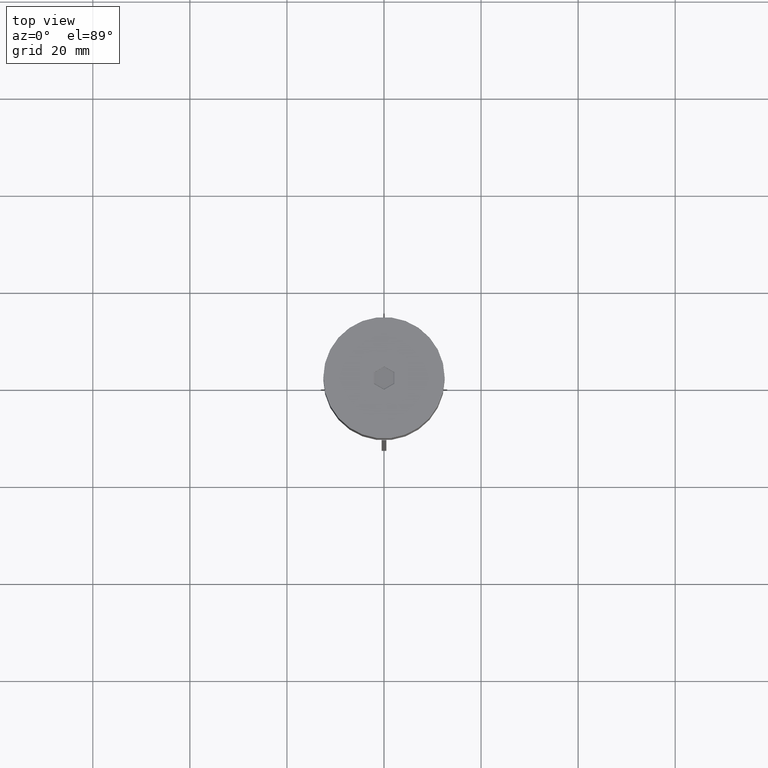
[diagram: clean part render]
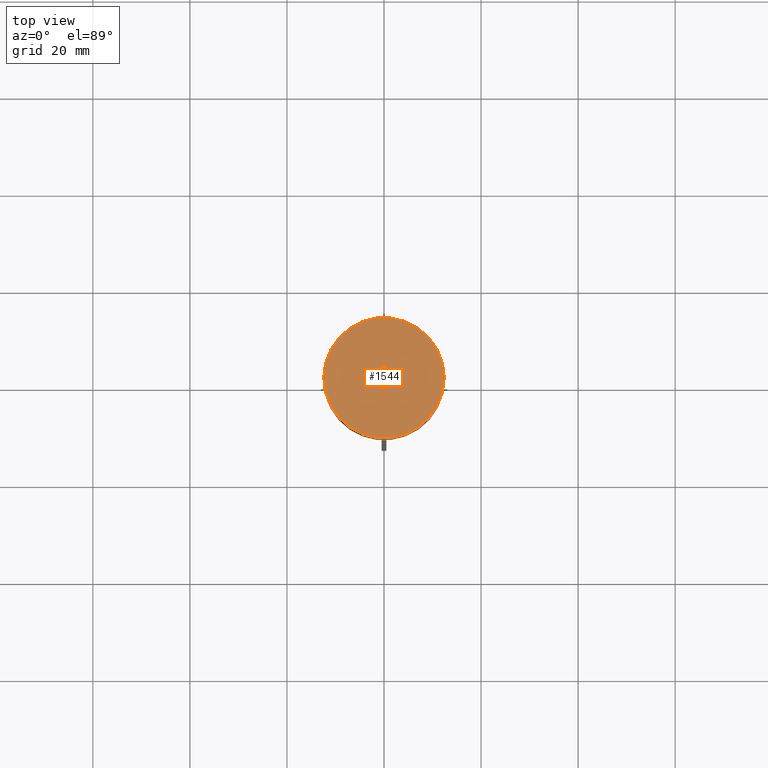
[diagram: same view with one face highlighted and labeled with its STEP entity id]
A machine part, top view. The second image highlights one B-rep face of the part: STEP entity #1544.
In plain terms, the highlighted planar face has unit normal (0, -0, 1).
Its self-contained STEP definition (entity closure, byte-faithful):
#91 = VECTOR ( 'NONE', #531, 1000.000000000000114 ) ;
#118 = LINE ( 'NONE', #141, #1914 ) ;
#136 = VERTEX_POINT ( 'NONE', #647 ) ;
#141 = CARTESIAN_POINT ( 'NONE',  ( 0.05000000000000582451, -2.396003617136956532, 0.000000000000000000 ) ) ;
#156 = CARTESIAN_POINT ( 'NONE',  ( -2.100000000000010747, 1.154700538379251018, 0.000000000000000000 ) ) ;
#272 = ORIENTED_EDGE ( 'NONE', *, *, #945, .T. ) ;
#276 = VERTEX_POINT ( 'NONE', #864 ) ;
#288 = CARTESIAN_POINT ( 'NONE',  ( -2.100000000000010747, -1.212435565298221052, 0.000000000000000000 ) ) ;
#289 = VECTOR ( 'NONE', #2038, 1000.000000000000000 ) ;
#307 = CARTESIAN_POINT ( 'NONE',  ( -0.05000000000000531103, 2.396003617136955199, 0.000000000000000000 ) ) ;
#338 = DIRECTION ( 'NONE',  ( -0.000000000000000000, -0.000000000000000000, 1.000000000000000000 ) ) ;
#420 = DIRECTION ( 'NONE',  ( 0.000000000000000000, -0.000000000000000000, 1.000000000000000000 ) ) ;
#421 = CIRCLE ( 'NONE', #1066, 12.39999999999999858 ) ;
#452 = DIRECTION ( 'NONE',  ( -0.8660254037844385966, -0.5000000000000002220, 0.000000000000000000 ) ) ;
#474 = VERTEX_POINT ( 'NONE', #965 ) ;
#485 = LINE ( 'NONE', #1314, #91 ) ;
#486 = CIRCLE ( 'NONE', #2076, 12.39999999999999858 ) ;
#496 = CARTESIAN_POINT ( 'NONE',  ( -12.39999999999999858, 1.524685264938454448E-15, 0.000000000000000000 ) ) ;
#509 = VERTEX_POINT ( 'NONE', #496 ) ;
#531 = DIRECTION ( 'NONE',  ( -0.8660254037844388186, 0.4999999999999997780, 0.000000000000000000 ) ) ;
#592 = EDGE_LOOP ( 'NONE', ( #1548, #1586 ) ) ;
#622 = DIRECTION ( 'NONE',  ( 0.8660254037844387076, 0.4999999999999998890, 0.000000000000000000 ) ) ;
#647 = CARTESIAN_POINT ( 'NONE',  ( 5.924185309651265879E-16, -2.424871130596440771, 0.000000000000000000 ) ) ;
#688 = EDGE_CURVE ( 'NONE', #1137, #509, #486, .T. ) ;
#718 = DIRECTION ( 'NONE',  ( -0.000000000000000000, -0.000000000000000000, 1.000000000000000000 ) ) ;
#722 = FACE_BOUND ( 'NONE', #889, .T. ) ;
#761 = CARTESIAN_POINT ( 'NONE',  ( 2.100000000000010747, -1.154700538379251684, 0.000000000000000000 ) ) ;
#772 = EDGE_CURVE ( 'NONE', #474, #1336, #2068, .T. ) ;
#805 = VECTOR ( 'NONE', #622, 1000.000000000000000 ) ;
#806 = DIRECTION ( 'NONE',  ( 0.000000000000000000, 1.000000000000000000, 0.000000000000000000 ) ) ;
#864 = CARTESIAN_POINT ( 'NONE',  ( -2.100000000000010747, 1.212435565298219498, 0.000000000000000000 ) ) ;
#879 = EDGE_CURVE ( 'NONE', #1356, #474, #1247, .T. ) ;
#889 = EDGE_LOOP ( 'NONE', ( #1054, #2067, #272, #1159, #1954, #1121 ) ) ;
#911 = PLANE ( 'NONE',  #1849 ) ;
#929 = EDGE_CURVE ( 'NONE', #509, #1137, #421, .T. ) ;
#945 = EDGE_CURVE ( 'NONE', #1693, #276, #1160, .T. ) ;
#965 = CARTESIAN_POINT ( 'NONE',  ( 2.100000000000010747, 1.212435565298220164, 0.000000000000000000 ) ) ;
#1054 = ORIENTED_EDGE ( 'NONE', *, *, #1690, .T. ) ;
#1066 = AXIS2_PLACEMENT_3D ( 'NONE', #1434, #338, #2080 ) ;
#1121 = ORIENTED_EDGE ( 'NONE', *, *, #772, .T. ) ;
#1135 = CARTESIAN_POINT ( 'NONE',  ( 2.100000000000010747, -1.212435565298220386, 0.000000000000000000 ) ) ;
#1137 = VERTEX_POINT ( 'NONE', #1490 ) ;
#1159 = ORIENTED_EDGE ( 'NONE', *, *, #2070, .T. ) ;
#1160 = LINE ( 'NONE', #156, #1910 ) ;
#1212 = FACE_OUTER_BOUND ( 'NONE', #592, .T. ) ;
#1247 = LINE ( 'NONE', #1730, #1638 ) ;
#1314 = CARTESIAN_POINT ( 'NONE',  ( -2.050000000000005596, -1.241303078757705292, 0.000000000000000000 ) ) ;
#1336 = VERTEX_POINT ( 'NONE', #1135 ) ;
#1356 = VERTEX_POINT ( 'NONE', #1655 ) ;
#1359 = DIRECTION ( 'NONE',  ( 1.000000000000000000, 0.000000000000000000, 0.000000000000000000 ) ) ;
#1385 = EDGE_CURVE ( 'NONE', #136, #1693, #485, .T. ) ;
#1405 = LINE ( 'NONE', #307, #805 ) ;
#1415 = DIRECTION ( 'NONE',  ( 0.8660254037844387076, -0.4999999999999998890, 0.000000000000000000 ) ) ;
#1434 = CARTESIAN_POINT ( 'NONE',  ( 0.000000000000000000, 0.000000000000000000, 0.000000000000000000 ) ) ;
#1490 = CARTESIAN_POINT ( 'NONE',  ( 12.39999999999999858, 0.000000000000000000, 0.000000000000000000 ) ) ;
#1518 = CARTESIAN_POINT ( 'NONE',  ( 0.000000000000000000, 0.000000000000000000, 0.000000000000000000 ) ) ;
#1544 = ADVANCED_FACE ( 'NONE', ( #1212, #722 ), #911, .T. ) ;
#1548 = ORIENTED_EDGE ( 'NONE', *, *, #688, .T. ) ;
#1586 = ORIENTED_EDGE ( 'NONE', *, *, #929, .T. ) ;
#1638 = VECTOR ( 'NONE', #1415, 1000.000000000000000 ) ;
#1655 = CARTESIAN_POINT ( 'NONE',  ( 6.247977034472734791E-16, 2.424871130596439883, 0.000000000000000000 ) ) ;
#1690 = EDGE_CURVE ( 'NONE', #1336, #136, #118, .T. ) ;
#1693 = VERTEX_POINT ( 'NONE', #288 ) ;
#1703 = CARTESIAN_POINT ( 'NONE',  ( 0.000000000000000000, 0.000000000000000000, 0.000000000000000000 ) ) ;
#1730 = CARTESIAN_POINT ( 'NONE',  ( 2.050000000000005596, 1.241303078757704403, 0.000000000000000000 ) ) ;
#1849 = AXIS2_PLACEMENT_3D ( 'NONE', #1518, #420, #1866 ) ;
#1866 = DIRECTION ( 'NONE',  ( 1.000000000000000000, 0.000000000000000000, 0.000000000000000000 ) ) ;
#1910 = VECTOR ( 'NONE', #806, 1000.000000000000000 ) ;
#1914 = VECTOR ( 'NONE', #452, 999.9999999999998863 ) ;
#1954 = ORIENTED_EDGE ( 'NONE', *, *, #879, .T. ) ;
#2038 = DIRECTION ( 'NONE',  ( 0.000000000000000000, -1.000000000000000000, 0.000000000000000000 ) ) ;
#2067 = ORIENTED_EDGE ( 'NONE', *, *, #1385, .T. ) ;
#2068 = LINE ( 'NONE', #761, #289 ) ;
#2070 = EDGE_CURVE ( 'NONE', #276, #1356, #1405, .T. ) ;
#2076 = AXIS2_PLACEMENT_3D ( 'NONE', #1703, #718, #1359 ) ;
#2080 = DIRECTION ( 'NONE',  ( 1.000000000000000000, 0.000000000000000000, 0.000000000000000000 ) ) ;